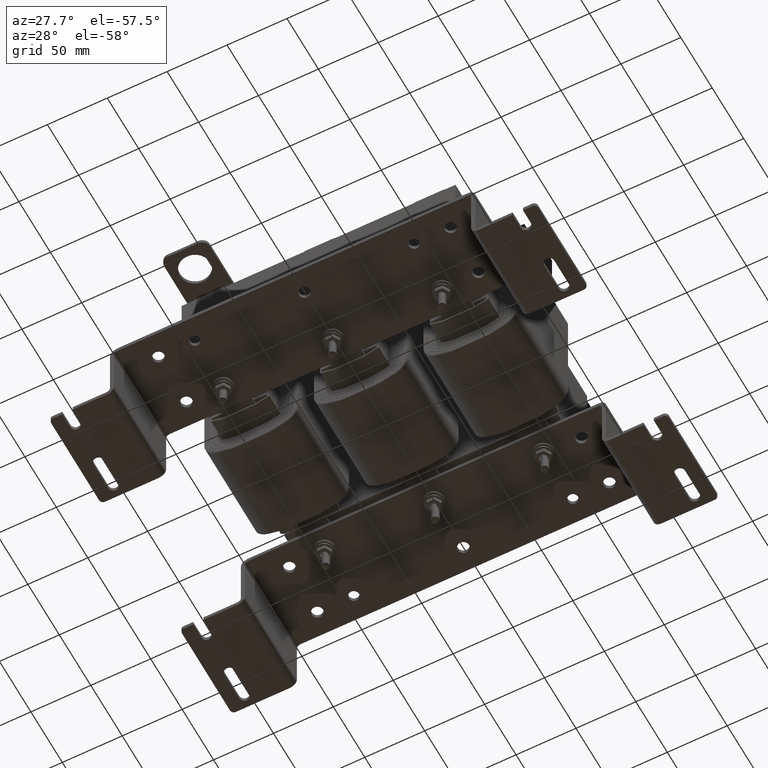
[diagram: clean part render]
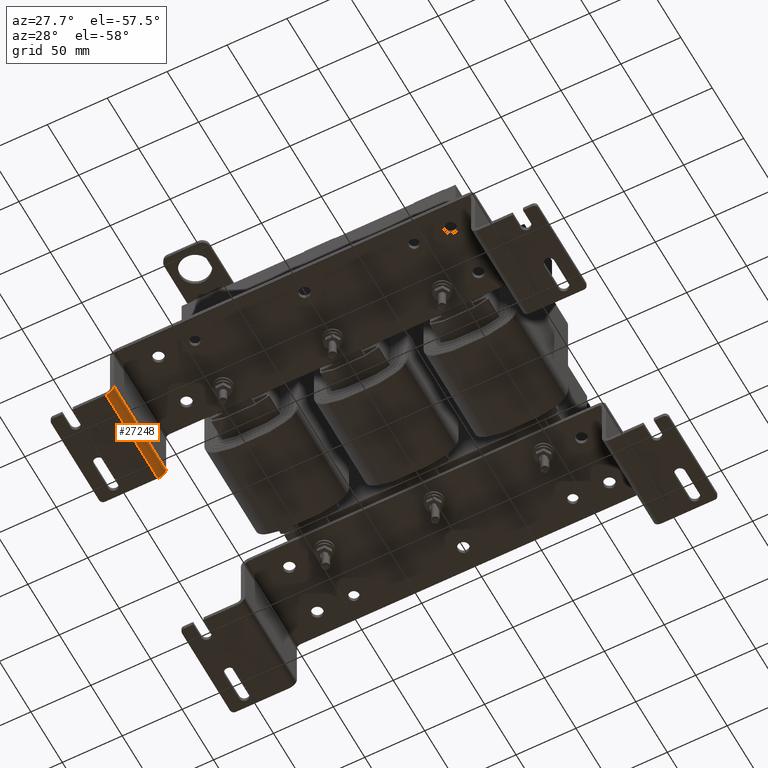
[diagram: same view with one face highlighted and labeled with its STEP entity id]
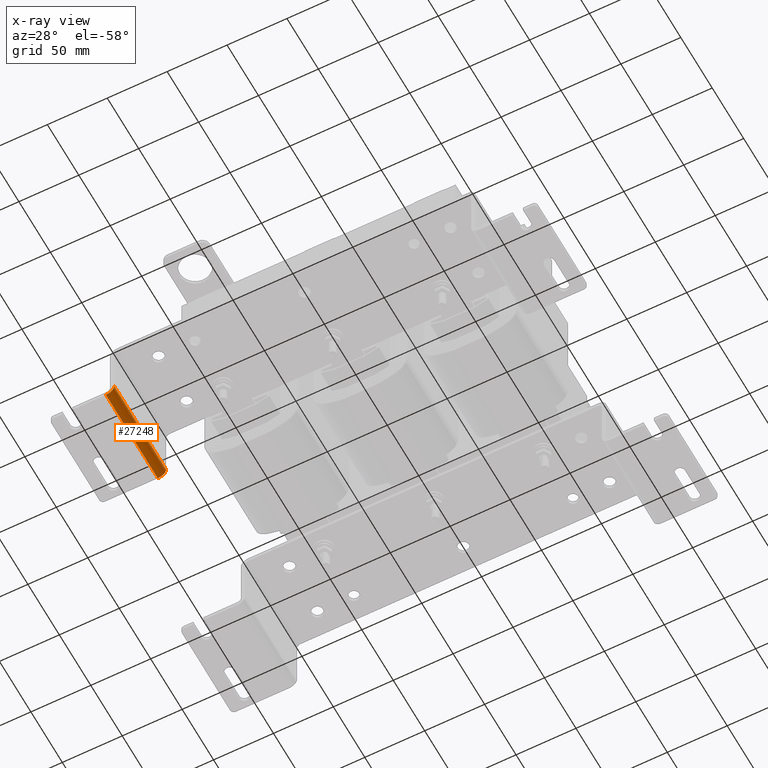
[diagram: x-ray of the same camera — body ghosted, the highlighted face saturated]
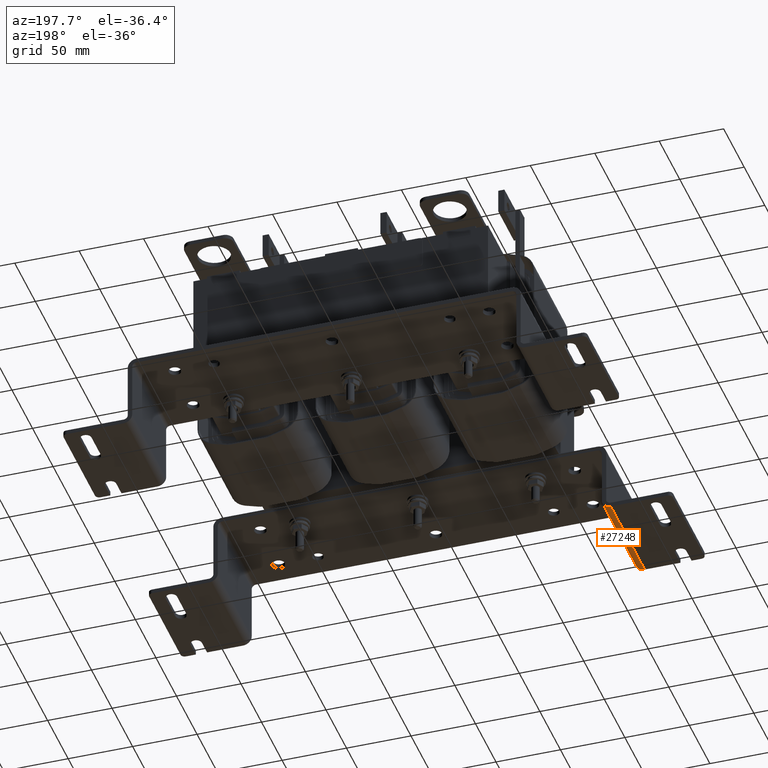
[diagram: same view with one face highlighted and labeled with its STEP entity id]
A machine part, auxiliary view. The second image highlights one B-rep face of the part: STEP entity #27248.
The next image is the same camera in x-ray: the body ghosted, the highlighted face saturated — about 0% of this face is hidden behind the body in this view.
A second angle (auxiliary view) of the same face is appended — the face is thin or edge-on in the first view.
In plain terms, the highlighted cylindrical surface (edge-blend (fillet) strip) has radius 6.8326 mm, axis along (-0, 1, -0).
Its self-contained STEP definition (entity closure, byte-faithful):
#2382=FACE_OUTER_BOUND('',#3924,.T.);
#3924=EDGE_LOOP('',(#21008,#21009,#21010,#21011));
#5896=LINE('',#44239,#8615);
#5915=LINE('',#44290,#8634);
#8615=VECTOR('',#32877,0.393700787401575);
#8634=VECTOR('',#32930,0.393700787401575);
#10493=CIRCLE('',#29094,0.268999999999999);
#10494=CIRCLE('',#29095,0.269000000000001);
#12298=VERTEX_POINT('',#44236);
#12299=VERTEX_POINT('',#44238);
#12313=VERTEX_POINT('',#44287);
#12314=VERTEX_POINT('',#44289);
#15478=EDGE_CURVE('',#12298,#12299,#5896,.T.);
#15503=EDGE_CURVE('',#12313,#12298,#10493,.T.);
#15504=EDGE_CURVE('',#12314,#12313,#5915,.T.);
#15505=EDGE_CURVE('',#12299,#12314,#10494,.T.);
#21008=ORIENTED_EDGE('',*,*,#15478,.F.);
#21009=ORIENTED_EDGE('',*,*,#15503,.F.);
#21010=ORIENTED_EDGE('',*,*,#15504,.F.);
#21011=ORIENTED_EDGE('',*,*,#15505,.F.);
#26276=CYLINDRICAL_SURFACE('',#29093,0.269);
#27248=ADVANCED_FACE('',(#2382),#26276,.T.);
#29093=AXIS2_PLACEMENT_3D('',#44286,#32926,#32927);
#29094=AXIS2_PLACEMENT_3D('',#44288,#32928,#32929);
#29095=AXIS2_PLACEMENT_3D('',#44291,#32931,#32932);
#32877=DIRECTION('',(3.09495236852085E-16,-1.,-3.6537822770092E-17));
#32926=DIRECTION('center_axis',(-3.09495236852085E-16,1.,-3.39394995331363E-16));
#32927=DIRECTION('ref_axis',(1.,3.09495236852085E-16,-5.22877180429485E-17));
#32928=DIRECTION('center_axis',(-3.09495236852085E-16,1.,-3.39394995331363E-16));
#32929=DIRECTION('ref_axis',(1.,0.,0.));
#32930=DIRECTION('',(-3.0920786296715E-16,1.,-4.30371130078801E-16));
#32931=DIRECTION('center_axis',(3.09495236852085E-16,-1.,3.39394995331363E-16));
#32932=DIRECTION('ref_axis',(-1.7873800999439E-15,0.,-1.));
#44236=CARTESIAN_POINT('',(-0.134500000000002,3.25,-2.1155));
#44238=CARTESIAN_POINT('',(-0.134500000000001,5.55705700775515E-16,-2.1155));
#44239=CARTESIAN_POINT('',(-0.134500000000002,1.625,-2.1155));
#44286=CARTESIAN_POINT('Origin',(-0.134500000000001,1.625,-1.8465));
#44287=CARTESIAN_POINT('',(0.134499999999999,3.25,-1.8465));
#44288=CARTESIAN_POINT('Origin',(-0.134500000000001,3.25,-1.8465));
#44289=CARTESIAN_POINT('',(0.1345,1.97263942488269E-17,-1.8465));
#44290=CARTESIAN_POINT('',(0.1345,0.812499999999999,-1.8465));
#44291=CARTESIAN_POINT('Origin',(-0.1345,6.99353086378051E-16,-1.8465));